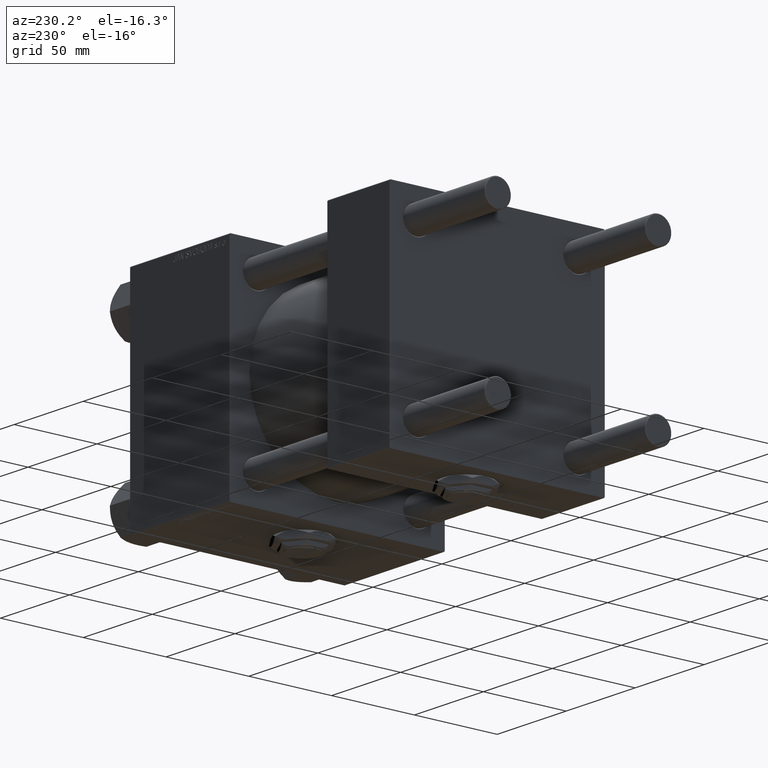
[diagram: clean part render]
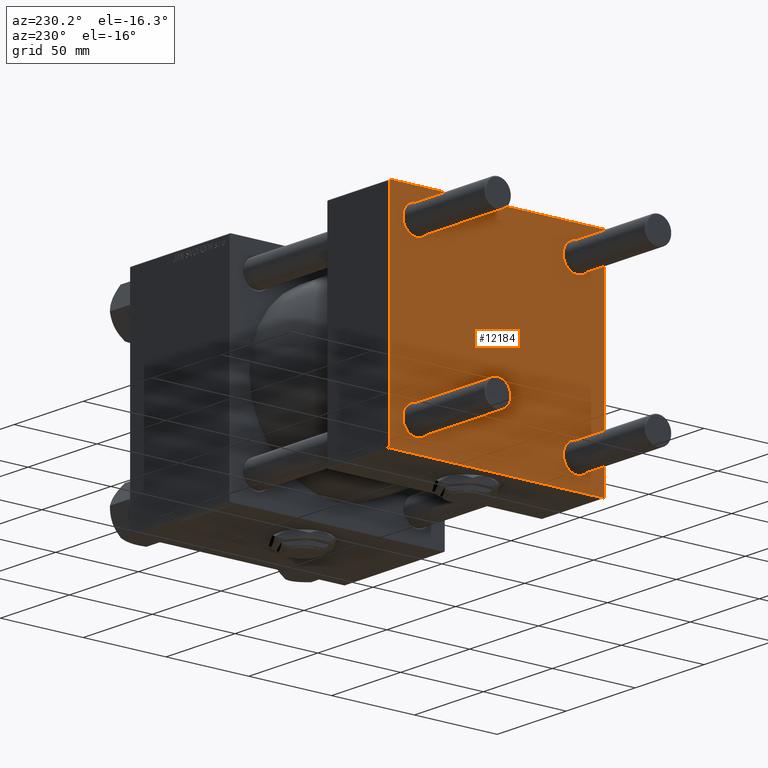
[diagram: same view with one face highlighted and labeled with its STEP entity id]
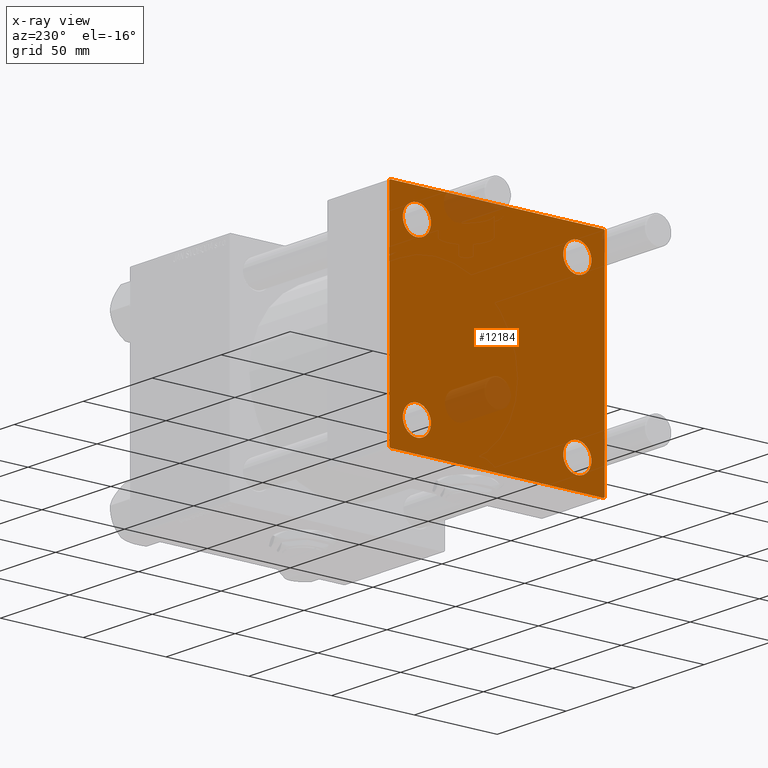
[diagram: x-ray of the same camera — body ghosted, the highlighted face saturated]
A machine part, auxiliary view. The second image highlights one B-rep face of the part: STEP entity #12184.
The next image is the same camera in x-ray: the body ghosted, the highlighted face saturated — about 6% of this face is hidden behind the body in this view.
In plain terms, the highlighted planar face has unit normal (-1, 0, 0).
Its self-contained STEP definition (entity closure, byte-faithful):
#929 = CARTESIAN_POINT ( 'NONE',  ( 0.000000000000000000, 48.45000000000000995, 56.95000000000002416 ) ) ;
#958 = VECTOR ( 'NONE', #11483, 1000.000000000000000 ) ;
#996 = CARTESIAN_POINT ( 'NONE',  ( 0.000000000000000000, -65.00000000000000000, 65.00000000000000000 ) ) ;
#1219 = AXIS2_PLACEMENT_3D ( 'NONE', #15566, #24305, #20315 ) ;
#1229 = ORIENTED_EDGE ( 'NONE', *, *, #30779, .T. ) ;
#1908 = DIRECTION ( 'NONE',  ( 0.000000000000000000, -0.7071067811865279218, 0.7071067811865671127 ) ) ;
#2200 = AXIS2_PLACEMENT_3D ( 'NONE', #13068, #32971, #16256 ) ;
#2229 = VERTEX_POINT ( 'NONE', #9917 ) ;
#2307 = CARTESIAN_POINT ( 'NONE',  ( 0.000000000000000000, 64.74999999999998579, 64.74999999999998579 ) ) ;
#2470 = EDGE_LOOP ( 'NONE', ( #25063, #26458 ) ) ;
#3043 = ORIENTED_EDGE ( 'NONE', *, *, #14786, .F. ) ;
#4310 = CIRCLE ( 'NONE', #41595, 8.500000000000007105 ) ;
#4331 = CARTESIAN_POINT ( 'NONE',  ( 0.000000000000000000, -48.44999999999999574, 39.95000000000001705 ) ) ;
#5228 = EDGE_CURVE ( 'NONE', #34626, #9462, #19850, .T. ) ;
#5454 = AXIS2_PLACEMENT_3D ( 'NONE', #42921, #47434, #47691 ) ;
#6408 = EDGE_CURVE ( 'NONE', #33860, #50107, #21735, .T. ) ;
#7026 = ORIENTED_EDGE ( 'NONE', *, *, #44853, .T. ) ;
#8026 = CIRCLE ( 'NONE', #5454, 8.500000000000007105 ) ;
#8353 = EDGE_CURVE ( 'NONE', #37062, #26601, #13208, .T. ) ;
#8742 = ORIENTED_EDGE ( 'NONE', *, *, #16670, .T. ) ;
#8750 = DIRECTION ( 'NONE',  ( 0.000000000000000000, 0.000000000000000000, 1.000000000000000000 ) ) ;
#8994 = ORIENTED_EDGE ( 'NONE', *, *, #12747, .T. ) ;
#9193 = CARTESIAN_POINT ( 'NONE',  ( 0.000000000000000000, 48.45000000000000995, 48.45000000000001705 ) ) ;
#9213 = CARTESIAN_POINT ( 'NONE',  ( 0.000000000000000000, -48.44999999999999574, 48.45000000000003126 ) ) ;
#9462 = VERTEX_POINT ( 'NONE', #4331 ) ;
#9480 = PLANE ( 'NONE',  #11482 ) ;
#9510 = CARTESIAN_POINT ( 'NONE',  ( 0.000000000000000000, 48.45000000000000995, 48.45000000000001705 ) ) ;
#9744 = FACE_BOUND ( 'NONE', #50178, .T. ) ;
#9917 = CARTESIAN_POINT ( 'NONE',  ( 0.000000000000000000, -48.44999999999999574, -39.95000000000001705 ) ) ;
#9969 = DIRECTION ( 'NONE',  ( 0.000000000000000000, -1.000000000000000000, -1.067522139062650425E-16 ) ) ;
#10165 = DIRECTION ( 'NONE',  ( -0.000000000000000000, -0.7071067811865474617, -0.7071067811865474617 ) ) ;
#11482 = AXIS2_PLACEMENT_3D ( 'NONE', #38137, #42896, #46622 ) ;
#11483 = DIRECTION ( 'NONE',  ( -0.000000000000000000, 0.7071067811865672237, 0.7071067811865279218 ) ) ;
#11606 = CARTESIAN_POINT ( 'NONE',  ( 0.000000000000000000, 64.74999999999997158, -64.74999999999997158 ) ) ;
#11824 = CARTESIAN_POINT ( 'NONE',  ( 0.000000000000000000, 48.45000000000000995, -48.45000000000001705 ) ) ;
#12184 = ADVANCED_FACE ( 'NONE', ( #50611, #14239, #30430, #9744, #13712 ), #9480, .T. ) ;
#12278 = VECTOR ( 'NONE', #22244, 1000.000000000000000 ) ;
#12747 = EDGE_CURVE ( 'NONE', #23349, #2229, #25075, .T. ) ;
#13068 = CARTESIAN_POINT ( 'NONE',  ( 0.000000000000000000, -48.44999999999999574, -48.45000000000003126 ) ) ;
#13208 = LINE ( 'NONE', #996, #36081 ) ;
#13440 = DIRECTION ( 'NONE',  ( 1.000000000000000000, -0.000000000000000000, 0.000000000000000000 ) ) ;
#13712 = FACE_OUTER_BOUND ( 'NONE', #40300, .T. ) ;
#14162 = VECTOR ( 'NONE', #37572, 1000.000000000000000 ) ;
#14239 = FACE_BOUND ( 'NONE', #40024, .T. ) ;
#14541 = VERTEX_POINT ( 'NONE', #19290 ) ;
#14640 = LINE ( 'NONE', #46239, #40492 ) ;
#14786 = EDGE_CURVE ( 'NONE', #38911, #50574, #37058, .T. ) ;
#15566 = CARTESIAN_POINT ( 'NONE',  ( 0.000000000000000000, -48.44999999999999574, 48.45000000000003126 ) ) ;
#15890 = VERTEX_POINT ( 'NONE', #32065 ) ;
#15924 = DIRECTION ( 'NONE',  ( 1.000000000000000000, -0.000000000000000000, 0.000000000000000000 ) ) ;
#16256 = DIRECTION ( 'NONE',  ( 0.000000000000000000, 0.000000000000000000, 1.000000000000000000 ) ) ;
#16314 = VECTOR ( 'NONE', #47416, 1000.000000000000114 ) ;
#16670 = EDGE_CURVE ( 'NONE', #22557, #26601, #14640, .T. ) ;
#17015 = AXIS2_PLACEMENT_3D ( 'NONE', #9213, #13440, #45818 ) ;
#19290 = CARTESIAN_POINT ( 'NONE',  ( 0.000000000000000000, 48.45000000000000995, -39.95000000000000284 ) ) ;
#19850 = CIRCLE ( 'NONE', #1219, 8.500000000000007105 ) ;
#20112 = CARTESIAN_POINT ( 'NONE',  ( 0.000000000000000000, 64.49999999999997158, -64.99999999999998579 ) ) ;
#20212 = LINE ( 'NONE', #36417, #958 ) ;
#20315 = DIRECTION ( 'NONE',  ( 0.000000000000000000, 0.000000000000000000, 1.000000000000000000 ) ) ;
#21373 = DIRECTION ( 'NONE',  ( 1.000000000000000000, -0.000000000000000000, 0.000000000000000000 ) ) ;
#21735 = LINE ( 'NONE', #34470, #12278 ) ;
#22244 = DIRECTION ( 'NONE',  ( 0.000000000000000000, 0.000000000000000000, -1.000000000000000000 ) ) ;
#22299 = EDGE_CURVE ( 'NONE', #37062, #50574, #20212, .T. ) ;
#22557 = VERTEX_POINT ( 'NONE', #34528 ) ;
#23090 = AXIS2_PLACEMENT_3D ( 'NONE', #9510, #30206, #38433 ) ;
#23209 = CIRCLE ( 'NONE', #23090, 8.500000000000007105 ) ;
#23303 = EDGE_CURVE ( 'NONE', #26604, #22557, #35436, .T. ) ;
#23349 = VERTEX_POINT ( 'NONE', #51880 ) ;
#23474 = AXIS2_PLACEMENT_3D ( 'NONE', #9193, #21373, #37577 ) ;
#23608 = ORIENTED_EDGE ( 'NONE', *, *, #52248, .T. ) ;
#24305 = DIRECTION ( 'NONE',  ( 1.000000000000000000, -0.000000000000000000, 0.000000000000000000 ) ) ;
#24870 = EDGE_CURVE ( 'NONE', #9462, #34626, #49224, .T. ) ;
#24947 = CARTESIAN_POINT ( 'NONE',  ( 0.000000000000000000, 65.00000000000000000, -64.49999999999995737 ) ) ;
#25063 = ORIENTED_EDGE ( 'NONE', *, *, #5228, .T. ) ;
#25075 = CIRCLE ( 'NONE', #2200, 8.500000000000007105 ) ;
#25815 = AXIS2_PLACEMENT_3D ( 'NONE', #44567, #15924, #8750 ) ;
#25898 = ORIENTED_EDGE ( 'NONE', *, *, #31082, .T. ) ;
#26003 = EDGE_CURVE ( 'NONE', #14541, #52322, #4310, .T. ) ;
#26458 = ORIENTED_EDGE ( 'NONE', *, *, #24870, .T. ) ;
#26601 = VERTEX_POINT ( 'NONE', #28604 ) ;
#26604 = VERTEX_POINT ( 'NONE', #20112 ) ;
#28604 = CARTESIAN_POINT ( 'NONE',  ( 0.000000000000000000, -65.00000000000000000, -64.49999999999991473 ) ) ;
#29557 = ORIENTED_EDGE ( 'NONE', *, *, #8353, .F. ) ;
#30206 = DIRECTION ( 'NONE',  ( 1.000000000000000000, -0.000000000000000000, 0.000000000000000000 ) ) ;
#30430 = FACE_BOUND ( 'NONE', #31434, .T. ) ;
#30779 = EDGE_CURVE ( 'NONE', #38911, #33860, #50618, .T. ) ;
#31082 = EDGE_CURVE ( 'NONE', #50107, #26604, #31766, .T. ) ;
#31434 = EDGE_LOOP ( 'NONE', ( #35876, #43513 ) ) ;
#31766 = LINE ( 'NONE', #11606, #45074 ) ;
#32065 = CARTESIAN_POINT ( 'NONE',  ( 0.000000000000000000, 48.45000000000000995, 39.95000000000000284 ) ) ;
#32585 = ORIENTED_EDGE ( 'NONE', *, *, #6408, .T. ) ;
#32971 = DIRECTION ( 'NONE',  ( 1.000000000000000000, -0.000000000000000000, 0.000000000000000000 ) ) ;
#33089 = CARTESIAN_POINT ( 'NONE',  ( 0.000000000000000000, 65.00000000000000000, 64.49999999999998579 ) ) ;
#33096 = CARTESIAN_POINT ( 'NONE',  ( 0.000000000000000000, -48.44999999999999574, 56.95000000000003837 ) ) ;
#33370 = DIRECTION ( 'NONE',  ( 0.000000000000000000, 0.000000000000000000, -1.000000000000000000 ) ) ;
#33860 = VERTEX_POINT ( 'NONE', #33089 ) ;
#34376 = CARTESIAN_POINT ( 'NONE',  ( 0.000000000000000000, 65.00000000000000000, -64.99999999999998579 ) ) ;
#34470 = CARTESIAN_POINT ( 'NONE',  ( 0.000000000000000000, 65.00000000000000000, 65.00000000000001421 ) ) ;
#34528 = CARTESIAN_POINT ( 'NONE',  ( 0.000000000000000000, -64.49999999999994316, -65.00000000000000000 ) ) ;
#34626 = VERTEX_POINT ( 'NONE', #33096 ) ;
#35436 = LINE ( 'NONE', #34376, #50573 ) ;
#35876 = ORIENTED_EDGE ( 'NONE', *, *, #26003, .T. ) ;
#36081 = VECTOR ( 'NONE', #33370, 1000.000000000000000 ) ;
#36417 = CARTESIAN_POINT ( 'NONE',  ( -0.000000000000000000, -64.74999999999819522, 64.75000000000179057 ) ) ;
#37058 = LINE ( 'NONE', #38823, #14162 ) ;
#37062 = VERTEX_POINT ( 'NONE', #42778 ) ;
#37572 = DIRECTION ( 'NONE',  ( 0.000000000000000000, -1.000000000000000000, -1.067522139062650425E-16 ) ) ;
#37577 = DIRECTION ( 'NONE',  ( 0.000000000000000000, 0.000000000000000000, 1.000000000000000000 ) ) ;
#37632 = ORIENTED_EDGE ( 'NONE', *, *, #22299, .T. ) ;
#37821 = EDGE_CURVE ( 'NONE', #52322, #14541, #8026, .T. ) ;
#38137 = CARTESIAN_POINT ( 'NONE',  ( 0.000000000000000000, 0.000000000000000000, 0.000000000000000000 ) ) ;
#38433 = DIRECTION ( 'NONE',  ( 0.000000000000000000, 0.000000000000000000, 1.000000000000000000 ) ) ;
#38823 = CARTESIAN_POINT ( 'NONE',  ( 0.000000000000000000, 65.00000000000000000, 65.00000000000001421 ) ) ;
#38911 = VERTEX_POINT ( 'NONE', #42866 ) ;
#39465 = EDGE_CURVE ( 'NONE', #2229, #23349, #48720, .T. ) ;
#39528 = VERTEX_POINT ( 'NONE', #929 ) ;
#39734 = CARTESIAN_POINT ( 'NONE',  ( 0.000000000000000000, 48.45000000000000995, -56.95000000000002416 ) ) ;
#40024 = EDGE_LOOP ( 'NONE', ( #42723, #8994 ) ) ;
#40032 = CARTESIAN_POINT ( 'NONE',  ( 0.000000000000000000, -64.49999999999997158, 65.00000000000000000 ) ) ;
#40300 = EDGE_LOOP ( 'NONE', ( #32585, #25898, #51387, #8742, #29557, #37632, #3043, #1229 ) ) ;
#40492 = VECTOR ( 'NONE', #1908, 1000.000000000000000 ) ;
#41595 = AXIS2_PLACEMENT_3D ( 'NONE', #11824, #48447, #47929 ) ;
#42723 = ORIENTED_EDGE ( 'NONE', *, *, #39465, .T. ) ;
#42778 = CARTESIAN_POINT ( 'NONE',  ( 0.000000000000000000, -65.00000000000000000, 64.50000000000000000 ) ) ;
#42866 = CARTESIAN_POINT ( 'NONE',  ( 0.000000000000000000, 64.49999999999997158, 65.00000000000001421 ) ) ;
#42896 = DIRECTION ( 'NONE',  ( -1.000000000000000000, 0.000000000000000000, -0.000000000000000000 ) ) ;
#42921 = CARTESIAN_POINT ( 'NONE',  ( 0.000000000000000000, 48.45000000000000995, -48.45000000000001705 ) ) ;
#43513 = ORIENTED_EDGE ( 'NONE', *, *, #37821, .T. ) ;
#44567 = CARTESIAN_POINT ( 'NONE',  ( 0.000000000000000000, -48.44999999999999574, -48.45000000000003126 ) ) ;
#44853 = EDGE_CURVE ( 'NONE', #15890, #39528, #46366, .T. ) ;
#45074 = VECTOR ( 'NONE', #10165, 1000.000000000000114 ) ;
#45818 = DIRECTION ( 'NONE',  ( 0.000000000000000000, 0.000000000000000000, 1.000000000000000000 ) ) ;
#46239 = CARTESIAN_POINT ( 'NONE',  ( 0.000000000000000000, -64.75000000000176215, -64.74999999999816680 ) ) ;
#46366 = CIRCLE ( 'NONE', #23474, 8.500000000000007105 ) ;
#46622 = DIRECTION ( 'NONE',  ( -0.000000000000000000, 0.000000000000000000, 1.000000000000000000 ) ) ;
#47416 = DIRECTION ( 'NONE',  ( 0.000000000000000000, 0.7071067811865474617, -0.7071067811865474617 ) ) ;
#47434 = DIRECTION ( 'NONE',  ( 1.000000000000000000, -0.000000000000000000, 0.000000000000000000 ) ) ;
#47691 = DIRECTION ( 'NONE',  ( 0.000000000000000000, 0.000000000000000000, 1.000000000000000000 ) ) ;
#47929 = DIRECTION ( 'NONE',  ( 0.000000000000000000, 0.000000000000000000, 1.000000000000000000 ) ) ;
#48447 = DIRECTION ( 'NONE',  ( 1.000000000000000000, -0.000000000000000000, 0.000000000000000000 ) ) ;
#48720 = CIRCLE ( 'NONE', #25815, 8.500000000000007105 ) ;
#49224 = CIRCLE ( 'NONE', #17015, 8.500000000000007105 ) ;
#50107 = VERTEX_POINT ( 'NONE', #24947 ) ;
#50178 = EDGE_LOOP ( 'NONE', ( #23608, #7026 ) ) ;
#50573 = VECTOR ( 'NONE', #9969, 1000.000000000000000 ) ;
#50574 = VERTEX_POINT ( 'NONE', #40032 ) ;
#50611 = FACE_BOUND ( 'NONE', #2470, .T. ) ;
#50618 = LINE ( 'NONE', #2307, #16314 ) ;
#51387 = ORIENTED_EDGE ( 'NONE', *, *, #23303, .T. ) ;
#51880 = CARTESIAN_POINT ( 'NONE',  ( 0.000000000000000000, -48.44999999999999574, -56.95000000000003837 ) ) ;
#52248 = EDGE_CURVE ( 'NONE', #39528, #15890, #23209, .T. ) ;
#52322 = VERTEX_POINT ( 'NONE', #39734 ) ;